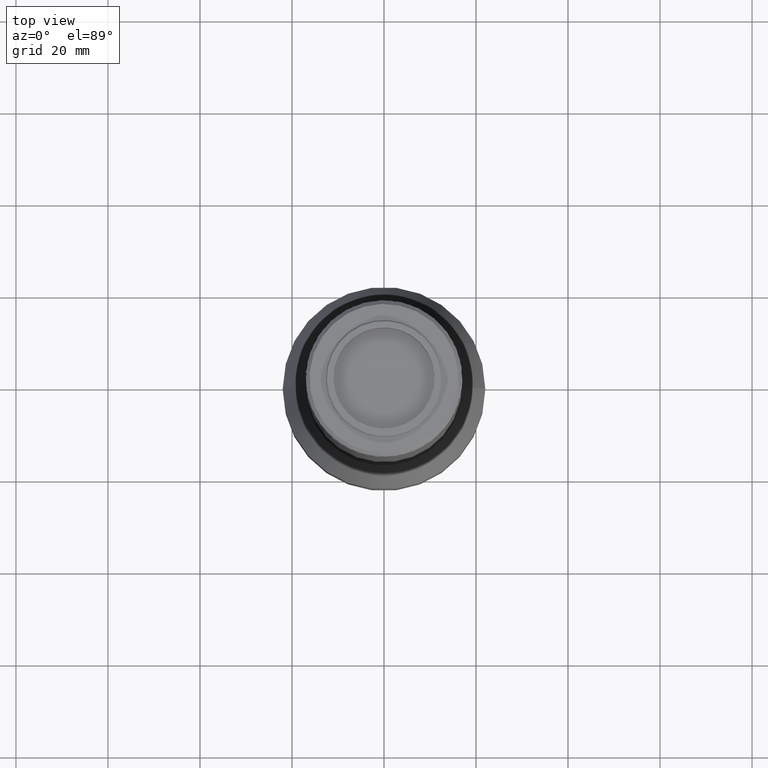
[diagram: clean part render]
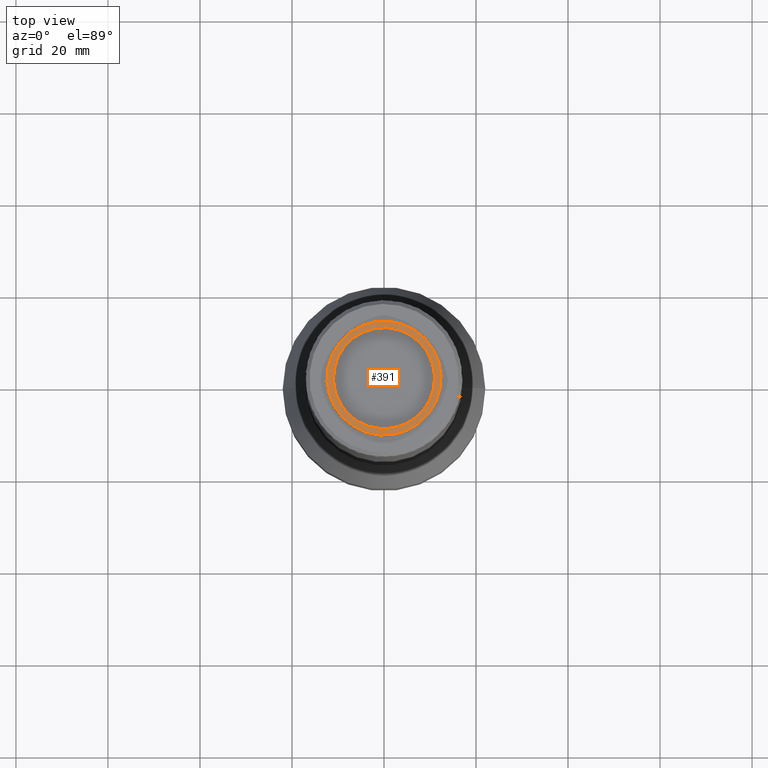
[diagram: same view with one face highlighted and labeled with its STEP entity id]
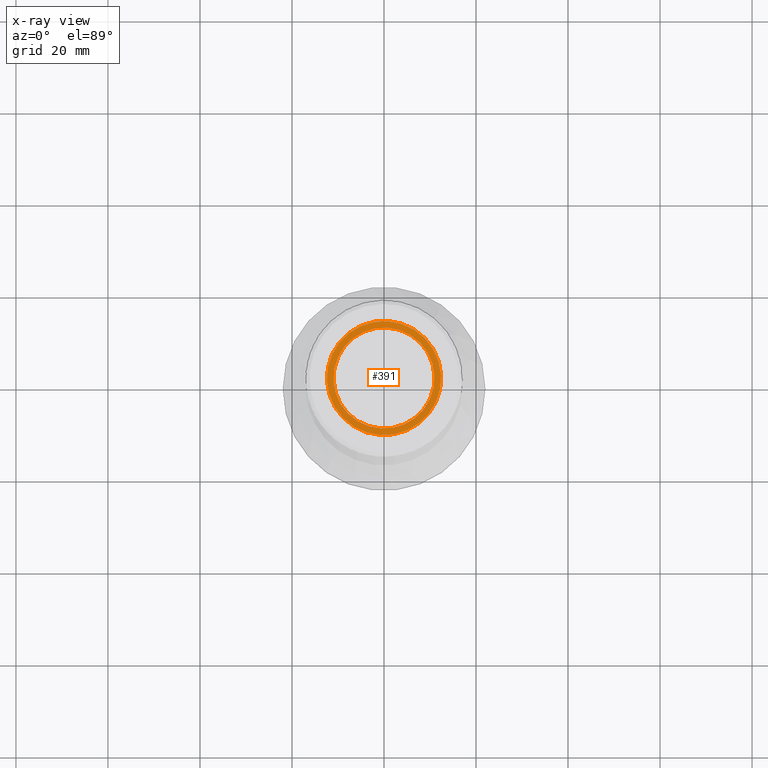
[diagram: x-ray of the same camera — body ghosted, the highlighted face saturated]
A machine part, top view. The second image highlights one B-rep face of the part: STEP entity #391.
The next image is the same camera in x-ray: the body ghosted, the highlighted face saturated — about 0% of this face is hidden behind the body in this view.
In plain terms, the highlighted planar face has unit normal (0, 0, -1).
Its self-contained STEP definition (entity closure, byte-faithful):
#10 = CIRCLE ( 'NONE', #103, 11.00000000000000000 ) ;
#21 = CARTESIAN_POINT ( 'NONE',  ( 1.666376825570277300E-014, -5.123042575321979000E-014, 113.2213085027108700 ) ) ;
#29 = FACE_BOUND ( 'NONE', #588, .T. ) ;
#42 = CARTESIAN_POINT ( 'NONE',  ( -9.683613181021563300, 7.745168543056005100, 113.2213085027108700 ) ) ;
#72 = VERTEX_POINT ( 'NONE', #42 ) ;
#82 = EDGE_CURVE ( 'NONE', #1518, #72, #1336, .T. ) ;
#90 = CARTESIAN_POINT ( 'NONE',  ( -8.590302015422352600, 6.870714030130320900, 113.2213085027108700 ) ) ;
#103 = AXIS2_PLACEMENT_3D ( 'NONE', #21, #616, #1340 ) ;
#125 = AXIS2_PLACEMENT_3D ( 'NONE', #158, #881, #1299 ) ;
#137 = FACE_OUTER_BOUND ( 'NONE', #1300, .T. ) ;
#158 = CARTESIAN_POINT ( 'NONE',  ( 6.870714030130389300, 8.590302015422318900, 113.2213085027108700 ) ) ;
#205 = CARTESIAN_POINT ( 'NONE',  ( 9.683613181021595300, -7.745168543056101900, 113.2213085027108700 ) ) ;
#263 = ORIENTED_EDGE ( 'NONE', *, *, #82, .T. ) ;
#391 = ADVANCED_FACE ( 'NONE', ( #137, #29 ), #1715, .F. ) ;
#420 = DIRECTION ( 'NONE',  ( -0.7809365468565792100, 0.6246103663754883900, 0.0000000000000000000 ) ) ;
#542 = DIRECTION ( 'NONE',  ( -3.330669073875489300E-016, -4.163336342344364100E-017, 1.000000000000000000 ) ) ;
#586 = AXIS2_PLACEMENT_3D ( 'NONE', #837, #1251, #420 ) ;
#588 = EDGE_LOOP ( 'NONE', ( #746, #689 ) ) ;
#616 = DIRECTION ( 'NONE',  ( -3.330669073875489300E-016, -4.163336342344364100E-017, 1.000000000000000000 ) ) ;
#659 = EDGE_CURVE ( 'NONE', #72, #1518, #1530, .T. ) ;
#687 = EDGE_CURVE ( 'NONE', #1818, #1084, #808, .T. ) ;
#689 = ORIENTED_EDGE ( 'NONE', *, *, #839, .F. ) ;
#746 = ORIENTED_EDGE ( 'NONE', *, *, #687, .F. ) ;
#808 = CIRCLE ( 'NONE', #1392, 11.00000000000000000 ) ;
#824 = DIRECTION ( 'NONE',  ( -0.7809365468565792100, 0.6246103663754883900, 0.0000000000000000000 ) ) ;
#837 = CARTESIAN_POINT ( 'NONE',  ( 1.666376825570277300E-014, -5.123042575321979000E-014, 113.2213085027108700 ) ) ;
#839 = EDGE_CURVE ( 'NONE', #1084, #1818, #10, .T. ) ;
#881 = DIRECTION ( 'NONE',  ( 3.330669073875489800E-016, 4.163336342344367800E-017, -1.000000000000000000 ) ) ;
#990 = DIRECTION ( 'NONE',  ( -3.330669073875489300E-016, -4.163336342344364100E-017, 1.000000000000000000 ) ) ;
#1084 = VERTEX_POINT ( 'NONE', #90 ) ;
#1098 = AXIS2_PLACEMENT_3D ( 'NONE', #1108, #542, #824 ) ;
#1108 = CARTESIAN_POINT ( 'NONE',  ( 1.666376825570277300E-014, -5.123042575321979000E-014, 113.2213085027108700 ) ) ;
#1251 = DIRECTION ( 'NONE',  ( -3.330669073875489300E-016, -4.163336342344364100E-017, 1.000000000000000000 ) ) ;
#1260 = CARTESIAN_POINT ( 'NONE',  ( 1.666376825570277300E-014, -5.123042575321979000E-014, 113.2213085027108700 ) ) ;
#1277 = DIRECTION ( 'NONE',  ( 0.7809365468565790900, -0.6246103663754885000, 0.0000000000000000000 ) ) ;
#1299 = DIRECTION ( 'NONE',  ( -0.7809365468565790900, 0.6246103663754883900, -2.340994901460714900E-016 ) ) ;
#1300 = EDGE_LOOP ( 'NONE', ( #1657, #263 ) ) ;
#1336 = CIRCLE ( 'NONE', #1098, 12.39999999999999700 ) ;
#1340 = DIRECTION ( 'NONE',  ( 0.7809365468565790900, -0.6246103663754885000, 0.0000000000000000000 ) ) ;
#1392 = AXIS2_PLACEMENT_3D ( 'NONE', #1260, #990, #1277 ) ;
#1518 = VERTEX_POINT ( 'NONE', #205 ) ;
#1530 = CIRCLE ( 'NONE', #586, 12.39999999999999700 ) ;
#1575 = CARTESIAN_POINT ( 'NONE',  ( 8.590302015422388100, -6.870714030130423900, 113.2213085027108700 ) ) ;
#1657 = ORIENTED_EDGE ( 'NONE', *, *, #659, .T. ) ;
#1715 = PLANE ( 'NONE',  #125 ) ;
#1818 = VERTEX_POINT ( 'NONE', #1575 ) ;